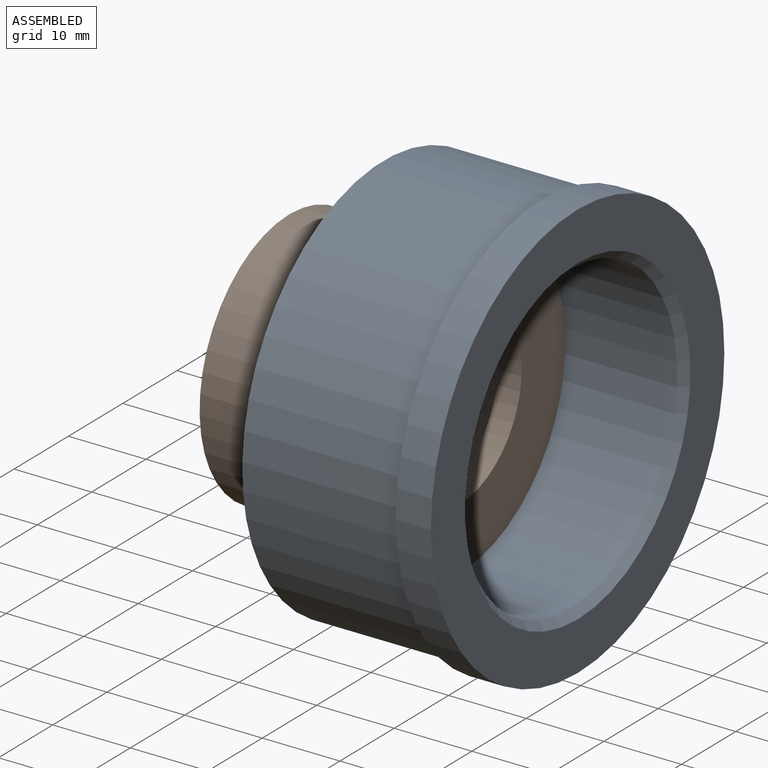
[diagram: assembled view]
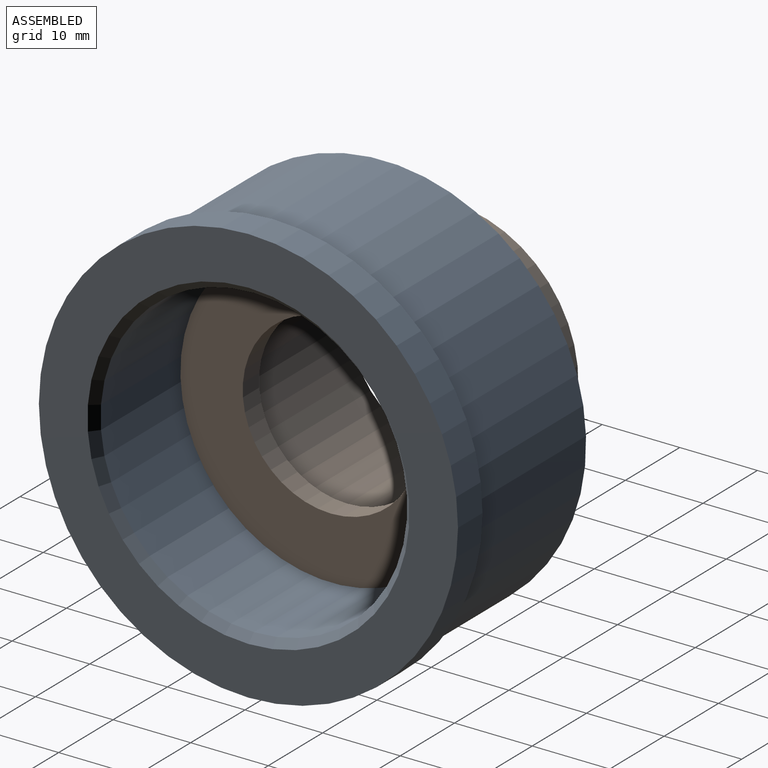
[diagram: assembled view, second angle]
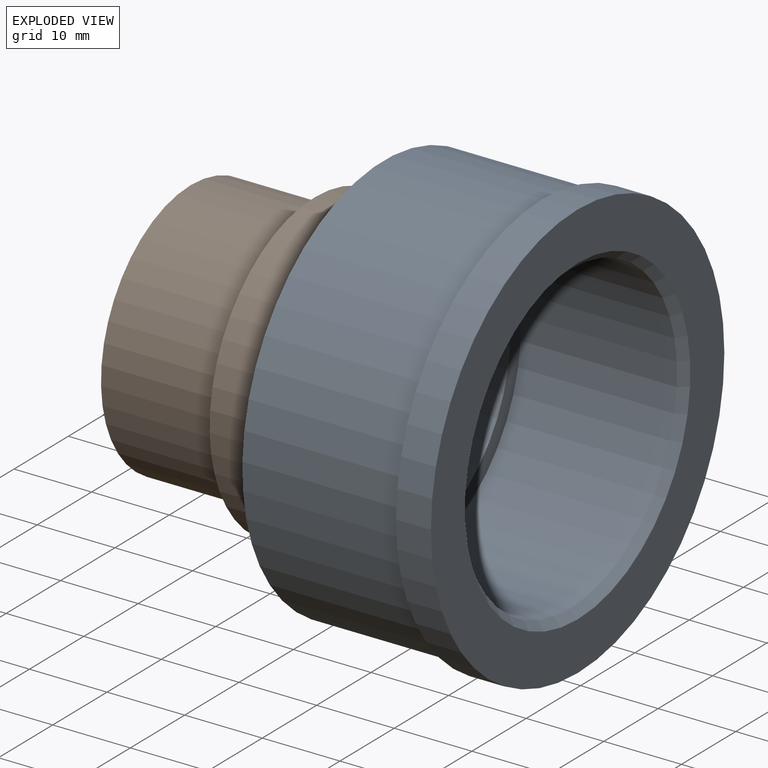
[diagram: exploded view]
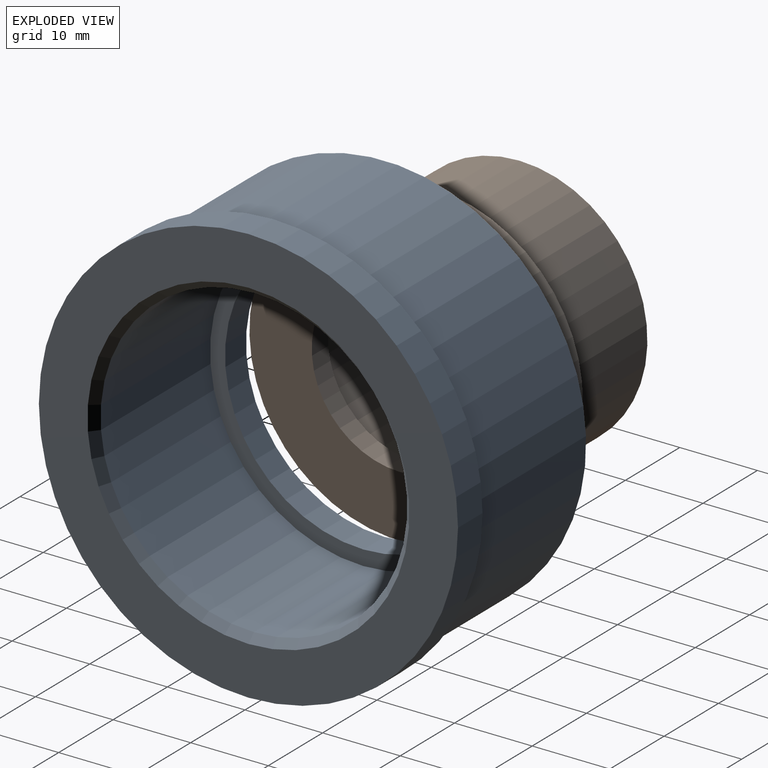
[diagram: exploded view, second angle]
ASSEMBLY  parts=2 mates=2
PART A: 9 faces, bbox 25x54x54 mm
  f0: cylinder r=27mm len=54mm, axis (1,0,0), area 763.4mm2, adj f1,f7
  f1: plane 54x54mm, normal (-1,0,0), area 166.5mm2, adj f0,f2
  f2: cylinder r=26mm len=52mm, axis (1,0,0), area 3348.9mm2, adj f1,f3
  f3: plane 52x52mm, normal (-1,0,0), area 1125.5mm2, adj f2,f4
  f4: cylinder r=17.82mm len=35.65mm, axis (1,0,0), area 431.2mm2, adj f3,f5
  f5: plane 39.5x39.5mm, normal (1,0,0), area 227.2mm2, adj f4,f6
  f6: cylinder r=19.75mm len=39.5mm, axis (1,0,0), area 2500.5mm2, adj f5,f8
  f7: plane 54x54mm, normal (1,0,0), area 937.6mm2, adj f0,f8
  f8: cone r=19.75mm half-angle=45deg, axis (1,0,0), area 179.9mm2, adj f6,f7
PART B: 8 faces, bbox 22x38.8x38.8 mm
  f0: cylinder r=11.35mm len=22.7mm, axis (-1,0,0), area 213.9mm2, adj f1,f7
  f1: plane 38.75x38.75mm, normal (1,0,0), area 774.6mm2, adj f0,f2
  f2: cylinder r=19.38mm len=38.75mm, axis (-1,0,0), area 730.4mm2, adj f1,f3
  f3: plane 38.75x38.75mm, normal (-1,0,0), area 324mm2, adj f2,f4
  f4: cylinder r=16.5mm len=33mm, axis (-1,0,0), area 1658.8mm2, adj f3,f5
  f5: plane 33x33mm, normal (-1,0,0), area 312mm2, adj f4,f6
  f6: cylinder r=13.15mm len=26.3mm, axis (-1,0,0), area 1569.9mm2, adj f5,f7
  f7: plane 26.3x26.3mm, normal (-1,0,0), area 138.5mm2, adj f0,f6
PLACE A t=(-20.47,-19.88,-1.27)mm fixed
PLACE B t=(-35.62,-39.25,-1.27)mm
MATE planar A.f0 <-> B.f0  axis (1,0,0) through (-41.62,-19.88,-1.27)mm
MATE slider A.f0 <-> B.f0  axis (-1,0,0) through (-45.47,-19.88,-1.27)mm
